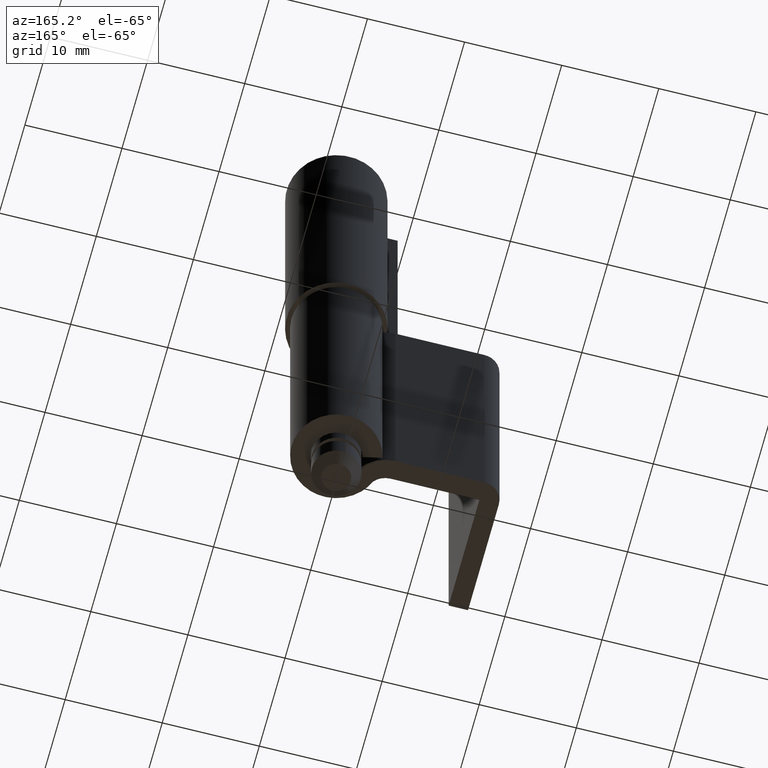
[diagram: clean part render]
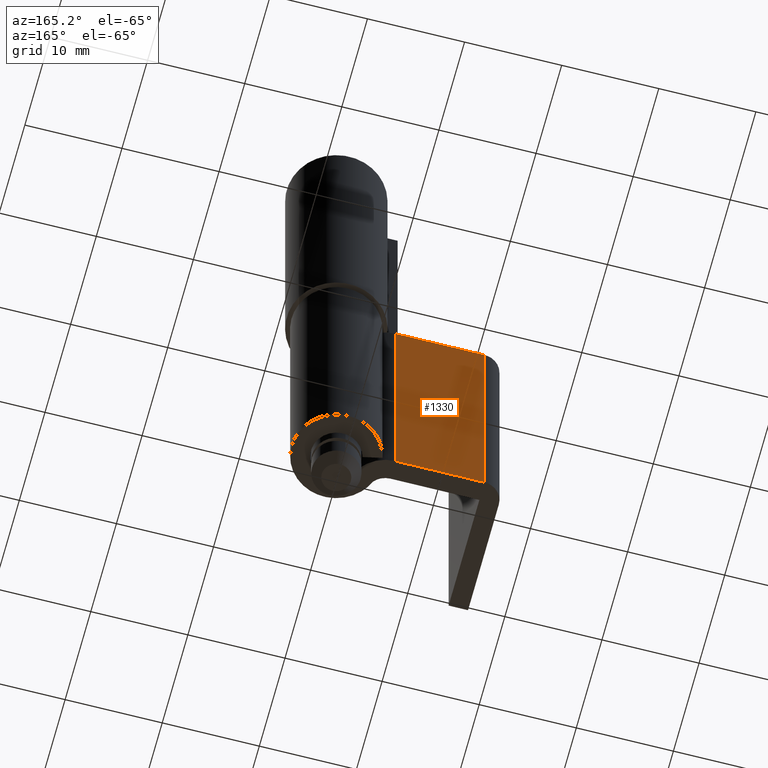
[diagram: same view with one face highlighted and labeled with its STEP entity id]
A machine part, auxiliary view. The second image highlights one B-rep face of the part: STEP entity #1330.
In plain terms, the highlighted face is a freeform B-spline surface patch.
Its self-contained STEP definition (entity closure, byte-faithful):
#1013=CARTESIAN_POINT('',(-15.0,1.0,4.999999999999890));
#1014=VERTEX_POINT('',#1013);
#1030=CARTESIAN_POINT('',(-5.822586209439480,1.0,4.999999999999890));
#1031=VERTEX_POINT('',#1030);
#1032=CARTESIAN_POINT('',(-5.822586209439480,1.0,4.999999999999890));
#1033=CARTESIAN_POINT('',(-15.0,1.0,4.999999999999890));
#1034=QUASI_UNIFORM_CURVE('',1,(#1032,#1033),.UNSPECIFIED.,.F.,.U.);
#1035=EDGE_CURVE('',#1031,#1014,#1034,.T.);
#1223=CARTESIAN_POINT('',(-5.822586209439480,1.0,34.999991999999949));
#1224=VERTEX_POINT('',#1223);
#1238=CARTESIAN_POINT('',(-15.0,1.0,34.999991999999949));
#1239=VERTEX_POINT('',#1238);
#1240=CARTESIAN_POINT('',(-5.822586209439480,1.0,34.999991999999949));
#1241=CARTESIAN_POINT('',(-15.0,1.0,34.999991999999949));
#1242=QUASI_UNIFORM_CURVE('',1,(#1240,#1241),.UNSPECIFIED.,.F.,.U.);
#1243=EDGE_CURVE('',#1224,#1239,#1242,.T.);
#1307=CARTESIAN_POINT('',(-15.0,1.0,34.999991999999949));
#1308=CARTESIAN_POINT('',(-15.0,1.0,4.999999999999890));
#1309=QUASI_UNIFORM_CURVE('',1,(#1307,#1308),.UNSPECIFIED.,.F.,.U.);
#1310=EDGE_CURVE('',#1239,#1014,#1309,.T.);
#1315=CARTESIAN_POINT('',(-15.458411801050890,1.0,36.498492105491067));
#1316=CARTESIAN_POINT('',(-15.458411801050890,1.0,3.501499626287945));
#1317=CARTESIAN_POINT('',(-5.364174162231170,1.0,36.498492105491067));
#1318=CARTESIAN_POINT('',(-5.364174162231170,1.0,3.501499626287945));
#1319=B_SPLINE_SURFACE_WITH_KNOTS('',1,1,((#1315,#1317),(#1316,#1318)),.UNSPECIFIED.,.F.,.F.,.U.,(2,2),(2,2),(0.0,32.996992479203122),(0.0,10.094237638819720),.UNSPECIFIED.);
#1320=ORIENTED_EDGE('',*,*,#1035,.T.);
#1321=ORIENTED_EDGE('',*,*,#1310,.F.);
#1322=ORIENTED_EDGE('',*,*,#1243,.F.);
#1323=CARTESIAN_POINT('',(-5.822586209439480,1.0,34.999991999999949));
#1324=CARTESIAN_POINT('',(-5.822586209439480,1.0,4.999999999999890));
#1325=QUASI_UNIFORM_CURVE('',1,(#1323,#1324),.UNSPECIFIED.,.F.,.U.);
#1326=EDGE_CURVE('',#1224,#1031,#1325,.T.);
#1327=ORIENTED_EDGE('',*,*,#1326,.T.);
#1328=EDGE_LOOP('',(#1320,#1321,#1322,#1327));
#1329=FACE_OUTER_BOUND('',#1328,.T.);
#1330=ADVANCED_FACE('',(#1329),#1319,.F.);